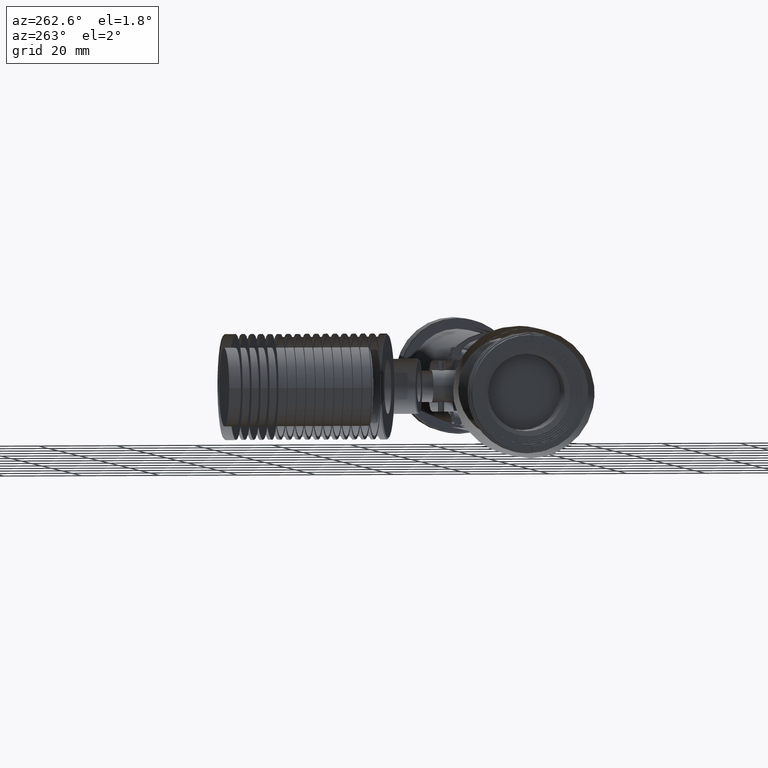
[diagram: clean part render]
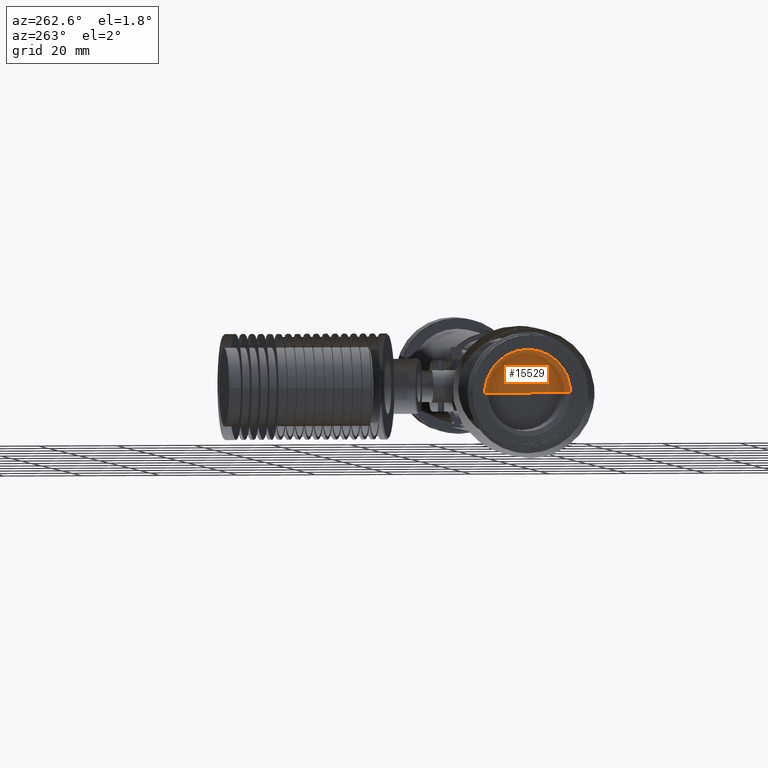
[diagram: same view with one face highlighted and labeled with its STEP entity id]
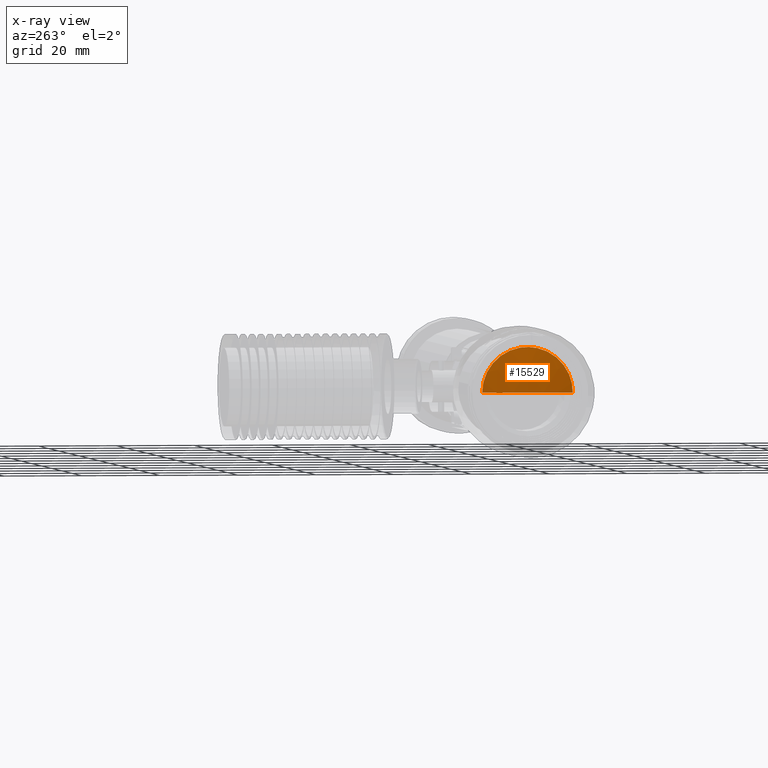
[diagram: x-ray of the same camera — body ghosted, the highlighted face saturated]
A machine part, auxiliary view. The second image highlights one B-rep face of the part: STEP entity #15529.
The next image is the same camera in x-ray: the body ghosted, the highlighted face saturated — about 0% of this face is hidden behind the body in this view.
In plain terms, the highlighted spherical surface has radius 49.12 mm.
Its self-contained STEP definition (entity closure, byte-faithful):
#863 = VERTEX_POINT ( 'NONE', #1885 ) ;
#1885 = CARTESIAN_POINT ( 'NONE',  ( -36.50199488804095438, -2.554141161514106972, 11.35173849561827275 ) ) ;
#5030 = CARTESIAN_POINT ( 'NONE',  ( -36.50199488808026871, 3.461996345658340690, 11.14248932457649133 ) ) ;
#5323 = ORIENTED_EDGE ( 'NONE', *, *, #24235, .F. ) ;
#5902 = CARTESIAN_POINT ( 'NONE',  ( -36.50199488808699755, 9.646338620850992029, 6.564193648692005389 ) ) ;
#5985 = CARTESIAN_POINT ( 'NONE',  ( -36.50199488809217030, -11.63553195785476291, 1.308494967472342063 ) ) ;
#6227 = EDGE_LOOP ( 'NONE', ( #9653, #22067, #22333, #5323 ) ) ;
#6453 = CARTESIAN_POINT ( 'NONE',  ( 11.22000001587709939, 2.531308496145360547E-12, -6.619371717420109618E-11 ) ) ;
#6970 = B_SPLINE_CURVE_WITH_KNOTS ( 'NONE', 3,
 ( #44055, #23678, #16284, #13161, #40704, #29960, #10026, #26813, #5985, #22778 ),
 .UNSPECIFIED., .F., .F.,
 ( 4, 2, 2, 2, 4 ),
 ( 0.6995191522812692630, 0.7746393642109519195, 0.8497595761406346870, 0.9248797880703173435, 1.000000000000000000 ),
 .UNSPECIFIED. ) ;
#9155 = CARTESIAN_POINT ( 'NONE',  ( 11.22000001587709939, 2.531308496145360547E-12, -6.619371717420109618E-11 ) ) ;
#9282 = CARTESIAN_POINT ( 'NONE',  ( -36.50199488807962211, 1.768782640156241870, 11.53307829755515002 ) ) ;
#9653 = ORIENTED_EDGE ( 'NONE', *, *, #11444, .T. ) ;
#10026 = CARTESIAN_POINT ( 'NONE',  ( -36.50199488808726045, -10.54649654702324391, 5.086174751791602056 ) ) ;
#10120 = EDGE_CURVE ( 'NONE', #863, #29859, #6970, .T. ) ;
#11444 = EDGE_CURVE ( 'NONE', #24552, #863, #38856, .T. ) ;
#11977 = AXIS2_PLACEMENT_3D ( 'NONE', #13429, #34023, #27525 ) ;
#12638 = CARTESIAN_POINT ( 'NONE',  ( -36.50199488805083803, 11.63553195800726314, -1.888141607354945266E-12 ) ) ;
#13161 = CARTESIAN_POINT ( 'NONE',  ( -36.50199488808206638, -7.277206315771510781, 9.172787540317354882 ) ) ;
#13429 = CARTESIAN_POINT ( 'NONE',  ( 11.22000001587709939, 2.531308496145360547E-12, -6.619371717420109618E-11 ) ) ;
#15529 = ADVANCED_FACE ( 'NONE', ( #17431 ), #24160, .F. ) ;
#15541 = CARTESIAN_POINT ( 'NONE',  ( -36.50199488809373349, 11.53781093084676357, 1.737643798276104823 ) ) ;
#15641 = DIRECTION ( 'NONE',  ( -1.347591961579910039E-12, 1.224646799147546478E-16, -1.000000000000000000 ) ) ;
#16284 = CARTESIAN_POINT ( 'NONE',  ( -36.50199488808038240, -5.058122024704662323, 10.55997938470013153 ) ) ;
#17431 = FACE_OUTER_BOUND ( 'NONE', #6227, .T. ) ;
#18686 = CARTESIAN_POINT ( 'NONE',  ( -36.50199488807941606, 0.9002458840697750153, 11.63314421787477215 ) ) ;
#18903 = CARTESIAN_POINT ( 'NONE',  ( -36.50199488808258508, 6.590209064246323578, 9.628584087765716504 ) ) ;
#20541 = CARTESIAN_POINT ( 'NONE',  ( -36.50199488805083803, 11.63553195800726314, -1.888141607354945266E-12 ) ) ;
#21396 = AXIS2_PLACEMENT_3D ( 'NONE', #9155, #15641, #36479 ) ;
#22067 = ORIENTED_EDGE ( 'NONE', *, *, #10120, .T. ) ;
#22333 = ORIENTED_EDGE ( 'NONE', *, *, #39641, .T. ) ;
#22578 = DIRECTION ( 'NONE',  ( 1.347591961579910039E-12, -1.932095066197042410E-29, 1.000000000000000000 ) ) ;
#22778 = CARTESIAN_POINT ( 'NONE',  ( -36.50199488806259751, -11.63553195801526030, 9.940559932636139151E-10 ) ) ;
#22928 = CARTESIAN_POINT ( 'NONE',  ( -36.50199488807933790, -1.706492294578478175, 11.54245949068953792 ) ) ;
#23035 = DIRECTION ( 'NONE',  ( 1.000000000000000000, 0.000000000000000000, -1.347591961579910039E-12 ) ) ;
#23671 = AXIS2_PLACEMENT_3D ( 'NONE', #6453, #22578, #23035 ) ;
#23678 = CARTESIAN_POINT ( 'NONE',  ( -36.50199488807980686, -3.830721616131234963, 11.06450789334049034 ) ) ;
#24160 = SPHERICAL_SURFACE ( 'NONE', #11977, 49.12000001588829434 ) ;
#24235 = EDGE_CURVE ( 'NONE', #24552, #33168, #28685, .T. ) ;
#24552 = VERTEX_POINT ( 'NONE', #20541 ) ;
#25402 = CARTESIAN_POINT ( 'NONE',  ( -36.50199488808414827, 7.947109315426744480, 8.543063886821085973 ) ) ;
#25624 = CARTESIAN_POINT ( 'NONE',  ( -36.50199488809138160, 11.15179404288739384, 3.431905690818714216 ) ) ;
#25845 = CARTESIAN_POINT ( 'NONE',  ( -36.50199488809493431, 11.63553195801897289, 0.8688400886093191611 ) ) ;
#26063 = CARTESIAN_POINT ( 'NONE',  ( -36.50199488809023762, 10.86351434489832357, 4.257292933759692311 ) ) ;
#26295 = CARTESIAN_POINT ( 'NONE',  ( -36.50199488808189585, 5.850741504122652259, 10.09501416034601107 ) ) ;
#26813 = CARTESIAN_POINT ( 'NONE',  ( -36.50199488809045789, -11.41273838040709521, 2.616708941119462839 ) ) ;
#27525 = DIRECTION ( 'NONE',  ( -5.152609020015268503E-14, 1.000000000000000000, 6.937864636507456269E-26 ) ) ;
#28685 = CIRCLE ( 'NONE', #23671, 49.12000001588829434 ) ;
#29653 = CARTESIAN_POINT ( 'NONE',  ( -36.50199488808073767, 4.286602399027471755, 10.85198262615193165 ) ) ;
#29859 = VERTEX_POINT ( 'NONE', #39353 ) ;
#29960 = CARTESIAN_POINT ( 'NONE',  ( -36.50199488808576831, -9.903234311893708508, 6.246896284224567886 ) ) ;
#33168 = VERTEX_POINT ( 'NONE', #37414 ) ;
#34023 = DIRECTION ( 'NONE',  ( -1.347591961579910039E-12, -5.749860029256462303E-29, -1.000000000000000000 ) ) ;
#35931 = CARTESIAN_POINT ( 'NONE',  ( -36.50199488804095438, -2.554141161514106972, 11.35173849561827275 ) ) ;
#36479 = DIRECTION ( 'NONE',  ( -1.000000000000000000, 0.000000000000000000, 1.347591961579910039E-12 ) ) ;
#37414 = CARTESIAN_POINT ( 'NONE',  ( -37.90000000001119673, 6.015465078788345941E-15, 1.501991163540806478E-23 ) ) ;
#38856 = B_SPLINE_CURVE_WITH_KNOTS ( 'NONE', 3,
 ( #12638, #25845, #15541, #25624, #26063, #39081, #5902, #43313, #25402, #18903, #26295, #29653, #5030, #9282, #18686, #39304, #22928, #35931 ),
 .UNSPECIFIED., .F., .F.,
 ( 4, 2, 2, 2, 2, 2, 2, 2, 4 ),
 ( 0.3004808477473031036, 0.3503606358140489152, 0.4002404238807946713, 0.4501202119475404828, 0.5000000000142862389, 0.5498797880810319949, 0.5997595761477777510, 0.6496393642145235070, 0.6995191522812692630 ),
 .UNSPECIFIED. ) ;
#39081 = CARTESIAN_POINT ( 'NONE',  ( -36.50199488808802784, 10.11077087493135984, 5.823469701156706257 ) ) ;
#39304 = CARTESIAN_POINT ( 'NONE',  ( -36.50199488807928105, -0.8374279621094854464, 11.63783491264329939 ) ) ;
#39353 = CARTESIAN_POINT ( 'NONE',  ( -36.50199488806259751, -11.63553195801526030, 9.940559932636139151E-10 ) ) ;
#39641 = EDGE_CURVE ( 'NONE', #29859, #33168, #40723, .T. ) ;
#40704 = CARTESIAN_POINT ( 'NONE',  ( -36.50199488808316772, -8.268413661766784273, 8.290422096613745850 ) ) ;
#40723 = CIRCLE ( 'NONE', #21396, 49.12000001588829434 ) ;
#43313 = CARTESIAN_POINT ( 'NONE',  ( -36.50199488808505777, 8.564485192117416545, 7.924019209949633158 ) ) ;
#44055 = CARTESIAN_POINT ( 'NONE',  ( -36.50199488804095438, -2.554141161514106972, 11.35173849561827275 ) ) ;